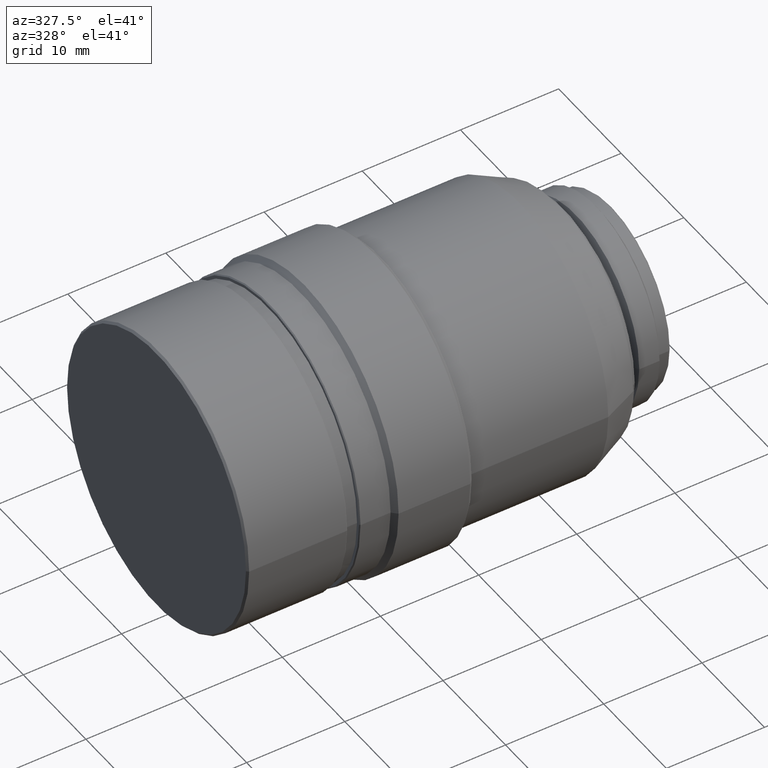
[diagram: clean part render]
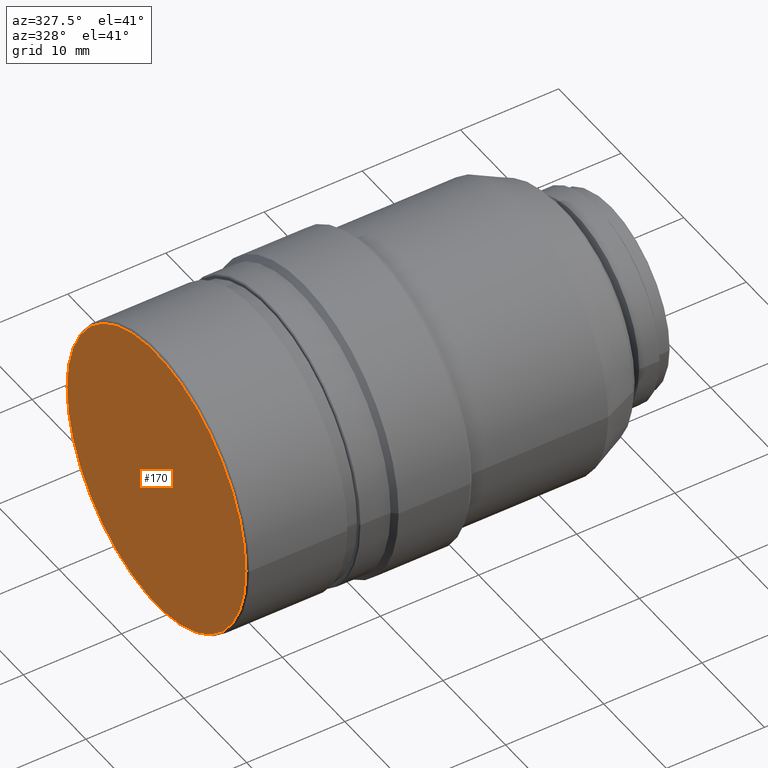
[diagram: same view with one face highlighted and labeled with its STEP entity id]
A machine part, auxiliary view. The second image highlights one B-rep face of the part: STEP entity #170.
In plain terms, the highlighted planar face has unit normal (-1, -0, 0).
Its self-contained STEP definition (entity closure, byte-faithful):
#129 = CIRCLE ( 'NONE', #1055, 14.30000000000000071 ) ;
#170 = ADVANCED_FACE ( 'NONE', ( #345 ), #450, .T. ) ;
#254 = CARTESIAN_POINT ( 'NONE',  ( 3.449613999999999958, 14.30000000000000071, 0.000000000000000000 ) ) ;
#285 = VERTEX_POINT ( 'NONE', #254 ) ;
#345 = FACE_OUTER_BOUND ( 'NONE', #912, .T. ) ;
#358 = DIRECTION ( 'NONE',  ( 1.000000000000000000, -1.250955520704399823E-16, 0.000000000000000000 ) ) ;
#403 = VERTEX_POINT ( 'NONE', #546 ) ;
#416 = ORIENTED_EDGE ( 'NONE', *, *, #480, .F. ) ;
#432 = ORIENTED_EDGE ( 'NONE', *, *, #1358, .F. ) ;
#450 = PLANE ( 'NONE',  #908 ) ;
#480 = EDGE_CURVE ( 'NONE', #403, #285, #129, .T. ) ;
#546 = CARTESIAN_POINT ( 'NONE',  ( 3.449613999999999958, -14.30000000000000071, 1.751244922780720231E-15 ) ) ;
#802 = CARTESIAN_POINT ( 'NONE',  ( 3.449613999999999958, 2.364305934131320075E-15, 0.000000000000000000 ) ) ;
#905 = CARTESIAN_POINT ( 'NONE',  ( 3.449613999999999958, -7.150000000000000355, 0.000000000000000000 ) ) ;
#908 = AXIS2_PLACEMENT_3D ( 'NONE', #905, #1245, #1351 ) ;
#912 = EDGE_LOOP ( 'NONE', ( #432, #416 ) ) ;
#988 = AXIS2_PLACEMENT_3D ( 'NONE', #1256, #358, #1024 ) ;
#1011 = CIRCLE ( 'NONE', #988, 14.30000000000000071 ) ;
#1024 = DIRECTION ( 'NONE',  ( -1.213093339843921105E-16, -1.000000000000000000, 0.000000000000000000 ) ) ;
#1055 = AXIS2_PLACEMENT_3D ( 'NONE', #802, #1283, #1377 ) ;
#1245 = DIRECTION ( 'NONE',  ( -1.000000000000000000, 1.250955520704399823E-16, 0.000000000000000000 ) ) ;
#1256 = CARTESIAN_POINT ( 'NONE',  ( 3.449613999999999958, 2.364305934131320075E-15, 0.000000000000000000 ) ) ;
#1283 = DIRECTION ( 'NONE',  ( 1.000000000000000000, -1.250955520704399823E-16, 0.000000000000000000 ) ) ;
#1351 = DIRECTION ( 'NONE',  ( 0.000000000000000000, 0.000000000000000000, 1.000000000000000000 ) ) ;
#1358 = EDGE_CURVE ( 'NONE', #285, #403, #1011, .T. ) ;
#1377 = DIRECTION ( 'NONE',  ( -1.213093339843921105E-16, -1.000000000000000000, 0.000000000000000000 ) ) ;